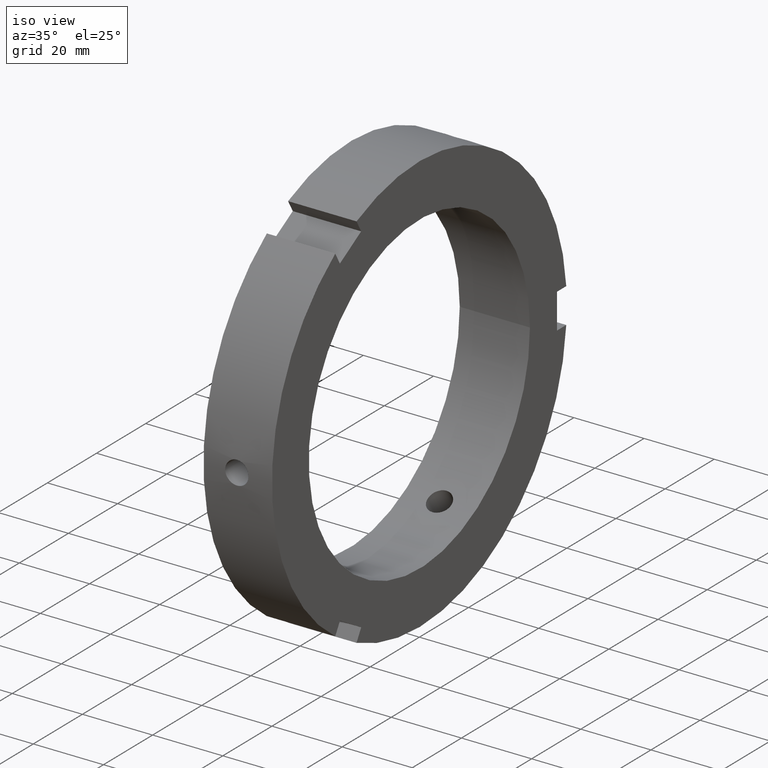
[diagram: clean part render]
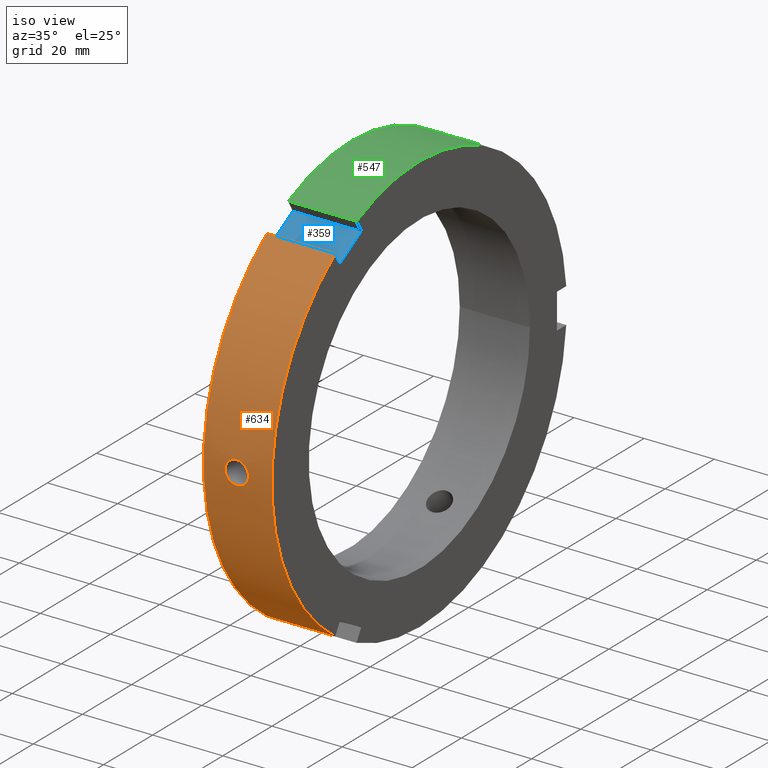
[diagram: same view with three faces highlighted in distinct colors, each labeled with its STEP entity id]
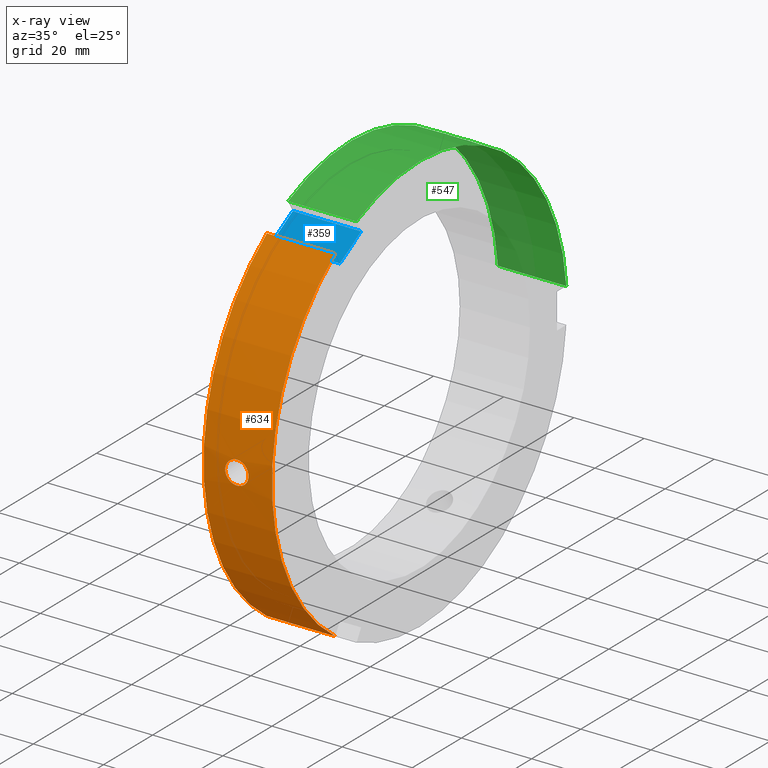
[diagram: x-ray of the same camera — body ghosted, the three highlighted faces saturated]
A machine part, iso view with three faces highlighted in distinct colors.
The next image is the same camera in x-ray (body ghosted, the three faces saturated) — at least one of them is partly hidden behind the body in this view.
Their STEP definitions:

[orange] entity #634 — the highlighted cylindrical surface (partial cylindrical patch) has radius 60 mm, axis along (1, 0, 0).
#75=CARTESIAN_POINT('',(0.499999999999984,-34.225778876675712,-49.280787943019945));
#76=VERTEX_POINT('',#75);
#91=CARTESIAN_POINT('',(19.999999999999989,-34.225778876675712,-49.280787943019945));
#92=VERTEX_POINT('',#91);
#99=CARTESIAN_POINT('',(0.499999999999984,-34.225778876675712,-49.280787943019945));
#100=DIRECTION('',(1.0,0.0,0.0));
#101=VECTOR('',#100,19.500000000000007);
#102=LINE('',#99,#101);
#103=EDGE_CURVE('',#76,#92,#102,.T.);
#303=CARTESIAN_POINT('',(0.499999999999984,-34.225778876675676,49.280787943019959));
#304=VERTEX_POINT('',#303);
#313=CARTESIAN_POINT('',(19.999999999999989,-34.225778876675676,49.280787943019959));
#314=VERTEX_POINT('',#313);
#315=CARTESIAN_POINT('',(19.999999999999989,-34.225778876675676,49.280787943019959));
#316=DIRECTION('',(-1.0,0.0,0.0));
#317=VECTOR('',#316,19.500000000000007);
#318=LINE('',#315,#317);
#319=EDGE_CURVE('',#314,#304,#318,.T.);
#499=CARTESIAN_POINT('',(19.999999999999986,0.0,0.0));
#500=DIRECTION('',(1.0,0.0,0.0));
#501=DIRECTION('',(0.0,1.0,0.0));
#502=AXIS2_PLACEMENT_3D('',#499,#500,#501);
#503=CIRCLE('',#502,60.0);
#504=EDGE_CURVE('',#314,#92,#503,.T.);
#576=CARTESIAN_POINT('',(10.249999999999986,0.0,0.0));
#577=DIRECTION('',(1.0,0.0,0.0));
#578=DIRECTION('',(0.0,1.0,0.0));
#579=AXIS2_PLACEMENT_3D('',#576,#577,#578);
#580=CYLINDRICAL_SURFACE('',#579,60.0);
#581=ORIENTED_EDGE('',*,*,#103,.T.);
#582=ORIENTED_EDGE('',*,*,#504,.F.);
#583=ORIENTED_EDGE('',*,*,#319,.T.);
#584=CARTESIAN_POINT('',(0.499999999999985,0.0,0.0));
#585=DIRECTION('',(1.0,0.0,0.0));
#586=DIRECTION('',(0.0,1.0,0.0));
#587=AXIS2_PLACEMENT_3D('',#584,#585,#586);
#588=CIRCLE('',#587,60.0);
#589=EDGE_CURVE('',#304,#76,#588,.T.);
#590=ORIENTED_EDGE('',*,*,#589,.T.);
#591=EDGE_LOOP('',(#581,#582,#583,#590));
#592=FACE_OUTER_BOUND('',#591,.T.);
#593=CARTESIAN_POINT('',(9.999999999999986,-59.907882183816177,3.323500000000000));
#594=VERTEX_POINT('',#593);
#595=CARTESIAN_POINT('',(9.999999999999986,-59.907882183816177,3.323500000000000));
#596=CARTESIAN_POINT('',(10.417397778768740,-59.907882183816177,3.323500000000000));
#597=CARTESIAN_POINT('',(10.862558739397921,-59.912693277876585,3.240065465524449));
#598=CARTESIAN_POINT('',(11.681375173826812,-59.930074508731444,2.900863555816292));
#599=CARTESIAN_POINT('',(12.055037892862664,-59.942394168474280,2.645100881684305));
#600=CARTESIAN_POINT('',(12.645100787758917,-59.965523395867883,2.055037986788053));
#601=CARTESIAN_POINT('',(12.900863532820182,-59.977834804695220,1.681375225247977));
#602=CARTESIAN_POINT('',(13.240065502190259,-59.995197166715073,0.862558654978747));
#603=CARTESIAN_POINT('',(13.323499999999985,-60.0,0.417397645887201));
#604=CARTESIAN_POINT('',(13.323499999999985,-60.0,-0.417397645887200));
#605=CARTESIAN_POINT('',(13.240065502190262,-59.995197166715066,-0.862558654978746));
#606=CARTESIAN_POINT('',(12.900863532820184,-59.977834804695213,-1.681375225247976));
#607=CARTESIAN_POINT('',(12.645100787758919,-59.965523395867883,-2.055037986788053));
#608=CARTESIAN_POINT('',(12.055037892862666,-59.942394168474280,-2.645100881684305));
#609=CARTESIAN_POINT('',(11.681375173826812,-59.930074508731444,-2.900863555816293));
#610=CARTESIAN_POINT('',(10.862558739397922,-59.912693277876585,-3.240065465524449));
#611=CARTESIAN_POINT('',(10.417397778768741,-59.907882183816177,-3.323500000000000));
#612=CARTESIAN_POINT('',(9.582602221231234,-59.907882183816177,-3.323500000000000));
#613=CARTESIAN_POINT('',(9.137441260602051,-59.912693277876585,-3.240065465524450));
#614=CARTESIAN_POINT('',(8.318624826173164,-59.930074508731444,-2.900863555816293));
#615=CARTESIAN_POINT('',(7.944962107137310,-59.942394168474280,-2.645100881684305));
#616=CARTESIAN_POINT('',(7.354899212241058,-59.965523395867883,-2.055037986788054));
#617=CARTESIAN_POINT('',(7.099136467179791,-59.977834804695213,-1.681375225247977));
#618=CARTESIAN_POINT('',(6.759934497809713,-59.995197166715066,-0.862558654978747));
#619=CARTESIAN_POINT('',(6.676499999999987,-60.0,-0.417397645887202));
#620=CARTESIAN_POINT('',(6.676499999999987,-60.0,0.417397645887200));
#621=CARTESIAN_POINT('',(6.759934497809713,-59.995197166715066,0.862558654978745));
#622=CARTESIAN_POINT('',(7.099136467179790,-59.977834804695213,1.681375225247976));
#623=CARTESIAN_POINT('',(7.354899212241057,-59.965523395867883,2.055037986788052));
#624=CARTESIAN_POINT('',(7.944962107137310,-59.942394168474280,2.645100881684305));
#625=CARTESIAN_POINT('',(8.318624826173164,-59.930074508731444,2.900863555816293));
#626=CARTESIAN_POINT('',(9.137441260602051,-59.912693277876585,3.240065465524450));
#627=CARTESIAN_POINT('',(9.582602221231234,-59.907882183816177,3.323500000000000));
#628=CARTESIAN_POINT('',(9.999999999999988,-59.907882183816177,3.323500000000000));
#629=B_SPLINE_CURVE_WITH_KNOTS('',3,(#595,#596,#597,#598,#599,#600,#601,#602,#603,#604,#605,#606,#607,#608,#609,#610,#611,#612,#613,#614,#615,#616,#617,#618,#619,#620,#621,#622,#623,#624,#625,#626,#627,#628),.UNSPECIFIED.,.T.,.U.,(4,2,2,2,2,2,2,2,2,2,2,2,2,2,2,2,4),(0.0,0.125219333630626,0.250438667261252,0.375657961027412,0.500877254793572,0.626096548559733,0.751315842325893,0.876535175956519,1.001754509587145,1.126973843217771,1.252193176848397,1.377412470614557,1.502631764380717,1.627851058146878,1.753070351913038,1.878289685543664,2.003509019174290),.UNSPECIFIED.);
#630=EDGE_CURVE('',#594,#594,#629,.T.);
#631=ORIENTED_EDGE('',*,*,#630,.T.);
#632=EDGE_LOOP('',(#631));
#633=FACE_BOUND('',#632,.T.);
#634=ADVANCED_FACE('',(#592,#633),#580,.T.);

[blue] entity #359 — the highlighted planar face has unit normal (0, 0.5, -0.866).
#263=CARTESIAN_POINT('',(0.499999999999985,-23.669872981077798,50.997422611928570));
#264=VERTEX_POINT('',#263);
#273=CARTESIAN_POINT('',(19.999999999999989,-23.669872981077798,50.997422611928570));
#274=VERTEX_POINT('',#273);
#275=CARTESIAN_POINT('',(19.999999999999989,-23.669872981077798,50.997422611928570));
#276=DIRECTION('',(-1.0,0.0,0.0));
#277=VECTOR('',#276,19.500000000000004);
#278=LINE('',#275,#277);
#279=EDGE_CURVE('',#274,#264,#278,.T.);
#305=CARTESIAN_POINT('',(0.499999999999985,-32.330127018922184,45.997422611928570));
#306=VERTEX_POINT('',#305);
#321=CARTESIAN_POINT('',(19.999999999999989,-32.330127018922184,45.997422611928570));
#322=VERTEX_POINT('',#321);
#329=CARTESIAN_POINT('',(19.999999999999989,-32.330127018922184,45.997422611928570));
#330=DIRECTION('',(-1.0,0.0,0.0));
#331=VECTOR('',#330,19.500000000000004);
#332=LINE('',#329,#331);
#333=EDGE_CURVE('',#322,#306,#332,.T.);
#338=CARTESIAN_POINT('',(19.999999999999989,-32.330127018922184,45.997422611928570));
#339=DIRECTION('',(0.0,0.500000000000000,-0.866025403784439));
#340=DIRECTION('',(0.0,0.866025403784439,0.500000000000000));
#341=AXIS2_PLACEMENT_3D('',#338,#339,#340);
#342=PLANE('',#341);
#343=CARTESIAN_POINT('',(0.499999999999985,-32.330127018922191,45.997422611928570));
#344=DIRECTION('',(0.0,0.866025403784439,0.500000000000000));
#345=VECTOR('',#344,10.000000000000002);
#346=LINE('',#343,#345);
#347=EDGE_CURVE('',#306,#264,#346,.T.);
#348=ORIENTED_EDGE('',*,*,#347,.F.);
#349=ORIENTED_EDGE('',*,*,#333,.F.);
#350=CARTESIAN_POINT('',(19.999999999999989,-23.669872981077798,50.997422611928563));
#351=DIRECTION('',(0.0,-0.866025403784439,-0.500000000000000));
#352=VECTOR('',#351,10.0);
#353=LINE('',#350,#352);
#354=EDGE_CURVE('',#274,#322,#353,.T.);
#355=ORIENTED_EDGE('',*,*,#354,.F.);
#356=ORIENTED_EDGE('',*,*,#279,.T.);
#357=EDGE_LOOP('',(#348,#349,#355,#356));
#358=FACE_OUTER_BOUND('',#357,.T.);
#359=ADVANCED_FACE('',(#358),#342,.F.);

[green] entity #547 — the highlighted cylindrical surface (partial cylindrical patch) has radius 60 mm, axis along (1, 0, 0).
#175=CARTESIAN_POINT('',(9.999999999999986,32.832176521385698,50.219997858109977));
#176=VERTEX_POINT('',#175);
#177=CARTESIAN_POINT('',(9.999999999999986,32.832176521385691,50.219997858109970));
#178=CARTESIAN_POINT('',(10.417397778768740,32.832176521385691,50.219997858109970));
#179=CARTESIAN_POINT('',(10.862558739397922,32.762325642007141,50.265881655024039));
#180=CARTESIAN_POINT('',(11.681375173826813,32.477258786615117,50.450535197347477));
#181=CARTESIAN_POINT('',(12.055037892862664,32.261921643348380,50.589085672716756));
#182=CARTESIAN_POINT('',(12.645100787758917,31.762476800234438,50.904147618657646));
#183=CARTESIAN_POINT('',(12.900863532820185,31.445031060706153,51.101640992228532));
#184=CARTESIAN_POINT('',(13.240065502190262,30.744596290823274,51.526085523942044));
#185=CARTESIAN_POINT('',(13.323499999999985,30.361476964818152,51.752825404122703));
#186=CARTESIAN_POINT('',(13.323499999999985,29.638523035181876,52.170223050009895));
#187=CARTESIAN_POINT('',(13.240065502190259,29.250600875891820,52.388644178920799));
#188=CARTESIAN_POINT('',(12.900863532820182,28.532803743989096,52.783016217476515));
#189=CARTESIAN_POINT('',(12.645100787758917,28.203046595633474,52.959185605445697));
#190=CARTESIAN_POINT('',(12.055037892862666,27.680472525125932,53.234186554401063));
#191=CARTESIAN_POINT('',(11.681375173826806,27.452815722116380,53.351398753163785));
#192=CARTESIAN_POINT('',(10.862558739397919,27.150367635869483,53.505947120548505));
#193=CARTESIAN_POINT('',(10.417397778768740,27.075705662430529,53.543497858109966));
#194=CARTESIAN_POINT('',(9.582602221231234,27.075705662430529,53.543497858109966));
#195=CARTESIAN_POINT('',(9.137441260602055,27.150367635869483,53.505947120548505));
#196=CARTESIAN_POINT('',(8.318624826173165,27.452815722116380,53.351398753163785));
#197=CARTESIAN_POINT('',(7.944962107137307,27.680472525125932,53.234186554401063));
#198=CARTESIAN_POINT('',(7.354899212241056,28.203046595633474,52.959185605445697));
#199=CARTESIAN_POINT('',(7.099136467179794,28.532803743989096,52.783016217476515));
#200=CARTESIAN_POINT('',(6.759934497809716,29.250600875891820,52.388644178920799));
#201=CARTESIAN_POINT('',(6.676499999999987,29.638523035181876,52.170223050009895));
#202=CARTESIAN_POINT('',(6.676499999999985,30.361476964818152,51.752825404122703));
#203=CARTESIAN_POINT('',(6.759934497809711,30.744596290823274,51.526085523942044));
#204=CARTESIAN_POINT('',(7.099136467179788,31.445031060706153,51.101640992228532));
#205=CARTESIAN_POINT('',(7.354899212241057,31.762476800234438,50.904147618657646));
#206=CARTESIAN_POINT('',(7.944962107137307,32.261921643348373,50.589085672716749));
#207=CARTESIAN_POINT('',(8.318624826173160,32.477258786615117,50.450535197347492));
#208=CARTESIAN_POINT('',(9.137441260602049,32.762325642007141,50.265881655024046));
#209=CARTESIAN_POINT('',(9.582602221231234,32.832176521385691,50.219997858109970));
#210=CARTESIAN_POINT('',(9.999999999999986,32.832176521385691,50.219997858109970));
#211=B_SPLINE_CURVE_WITH_KNOTS('',3,(#177,#178,#179,#180,#181,#182,#183,#184,#185,#186,#187,#188,#189,#190,#191,#192,#193,#194,#195,#196,#197,#198,#199,#200,#201,#202,#203,#204,#205,#206,#207,#208,#209,#210),.UNSPECIFIED.,.T.,.U.,(4,2,2,2,2,2,2,2,2,2,2,2,2,2,2,2,4),(0.0,0.125219333630626,0.250438667261252,0.375657961027412,0.500877254793572,0.626096548559732,0.751315842325892,0.876535175956518,1.001754509587145,1.126973843217771,1.252193176848397,1.377412470614557,1.502631764380717,1.627851058146877,1.753070351913037,1.878289685543663,2.003509019174289),.UNSPECIFIED.);
#212=EDGE_CURVE('',#176,#176,#211,.T.);
#265=CARTESIAN_POINT('',(0.499999999999984,-25.565524838831294,54.280787943019959));
#266=VERTEX_POINT('',#265);
#281=CARTESIAN_POINT('',(19.999999999999989,-25.565524838831294,54.280787943019959));
#282=VERTEX_POINT('',#281);
#289=CARTESIAN_POINT('',(0.499999999999984,-25.565524838831294,54.280787943019952));
#290=DIRECTION('',(1.0,0.0,0.0));
#291=VECTOR('',#290,19.500000000000007);
#292=LINE('',#289,#291);
#293=EDGE_CURVE('',#266,#282,#292,.T.);
#481=CARTESIAN_POINT('',(19.999999999999989,59.791303715506992,4.999999999999996));
#482=VERTEX_POINT('',#481);
#489=CARTESIAN_POINT('',(19.999999999999986,0.0,0.0));
#490=DIRECTION('',(1.0,0.0,0.0));
#491=DIRECTION('',(0.0,1.0,0.0));
#492=AXIS2_PLACEMENT_3D('',#489,#490,#491);
#493=CIRCLE('',#492,60.0);
#494=EDGE_CURVE('',#482,#282,#493,.T.);
#520=CARTESIAN_POINT('',(10.249999999999986,0.0,0.0));
#521=DIRECTION('',(1.0,0.0,0.0));
#522=DIRECTION('',(0.0,1.0,0.0));
#523=AXIS2_PLACEMENT_3D('',#520,#521,#522);
#524=CYLINDRICAL_SURFACE('',#523,60.0);
#525=ORIENTED_EDGE('',*,*,#293,.T.);
#526=ORIENTED_EDGE('',*,*,#494,.F.);
#527=CARTESIAN_POINT('',(0.499999999999984,59.791303715506992,4.999999999999996));
#528=VERTEX_POINT('',#527);
#529=CARTESIAN_POINT('',(19.999999999999989,59.791303715506992,4.999999999999996));
#530=DIRECTION('',(-1.0,0.0,0.0));
#531=VECTOR('',#530,19.500000000000007);
#532=LINE('',#529,#531);
#533=EDGE_CURVE('',#482,#528,#532,.T.);
#534=ORIENTED_EDGE('',*,*,#533,.T.);
#535=CARTESIAN_POINT('',(0.499999999999985,0.0,0.0));
#536=DIRECTION('',(1.0,0.0,0.0));
#537=DIRECTION('',(0.0,1.0,0.0));
#538=AXIS2_PLACEMENT_3D('',#535,#536,#537);
#539=CIRCLE('',#538,60.0);
#540=EDGE_CURVE('',#528,#266,#539,.T.);
#541=ORIENTED_EDGE('',*,*,#540,.T.);
#542=EDGE_LOOP('',(#525,#526,#534,#541));
#543=FACE_OUTER_BOUND('',#542,.T.);
#544=ORIENTED_EDGE('',*,*,#212,.T.);
#545=EDGE_LOOP('',(#544));
#546=FACE_BOUND('',#545,.T.);
#547=ADVANCED_FACE('',(#543,#546),#524,.T.);